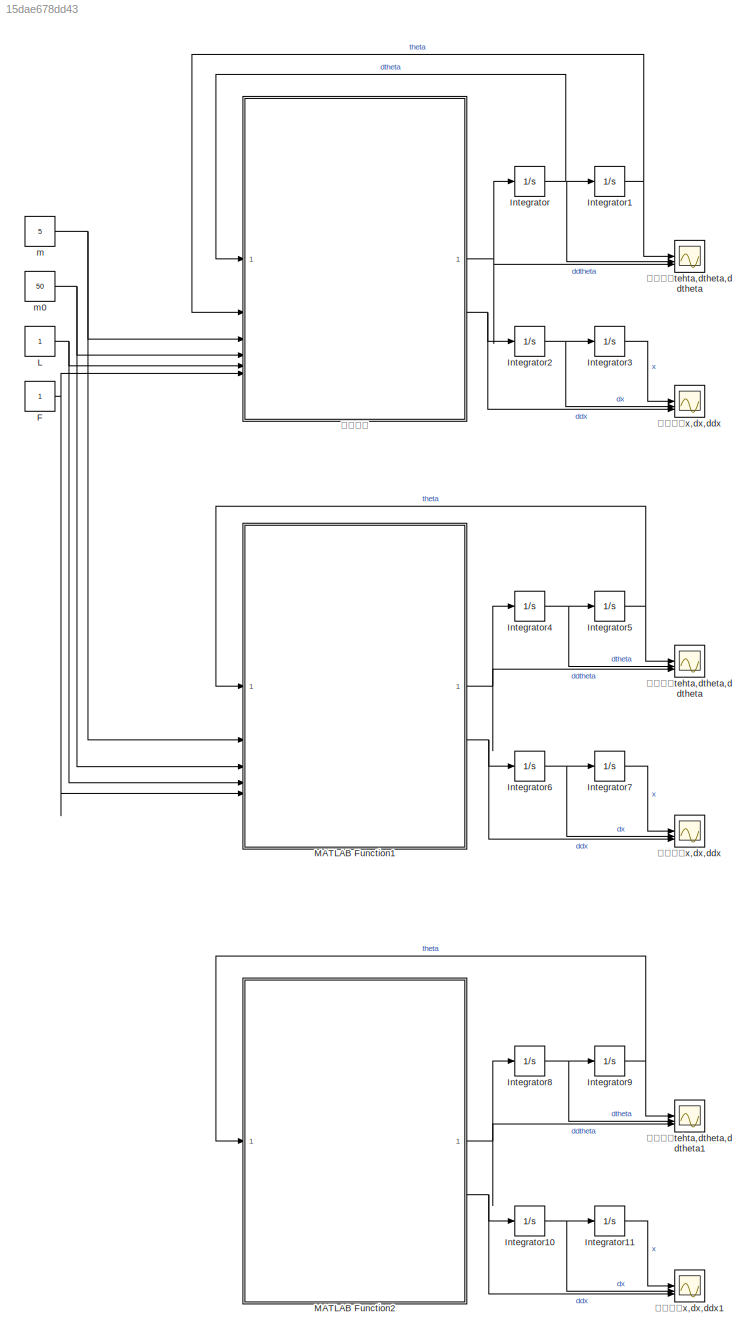
MODEL slx_15dae678dd43
KIND model
CONFIG AbsTol = auto
CONFIG EnableMultiTasking = off
CONFIG FixedStep = auto
CONFIG MaxStep = auto
CONFIG MinStep = auto
CONFIG RelTol = 1e-3
CONFIG SampleTimeConstraint = Unconstrained
CONFIG SolverName = VariableStepAuto
CONFIG StartTime = 0.0
CONFIG StopTime = 10.0
BLOCK [Constant] F
BLOCK [Integrator] Integrator
BLOCK [Integrator] Integrator1
BLOCK [Integrator] Integrator10
BLOCK [Integrator] Integrator11
BLOCK [Integrator] Integrator2
BLOCK [Integrator] Integrator3
BLOCK [Integrator] Integrator4
BLOCK [Integrator] Integrator5
BLOCK [Integrator] Integrator6
BLOCK [Integrator] Integrator7
BLOCK [Integrator] Integrator8
BLOCK [Integrator] Integrator9
BLOCK [Constant] L
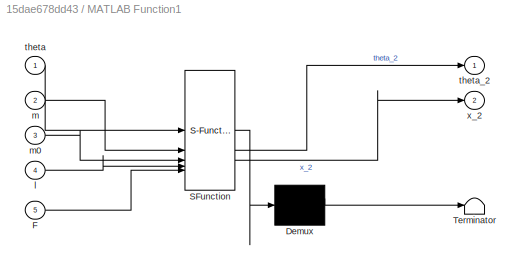
BLOCK [SubSystem] MATLAB Function1
  ErrorFcn = Stateflow.Translate.translate
  PermitHierarchicalResolution = ExplicitOnly
  SFBlockType = MATLAB Function
  TreatAsAtomicUnit = on
BLOCK [Demux] MATLAB Function1/ Demux 
  Outputs = 1
BLOCK [S-Function] MATLAB Function1/ SFunction 
  EnableBusSupport = on
  FunctionName = sf_sfun
  PortCounts = [5 3]
  SFcnIsStateOwnerBlock = off
  SFunctionDeploymentMode = off
  Tag = Stateflow S-Function 1
BLOCK [Terminator] MATLAB Function1/ Terminator 
BLOCK [Inport] MATLAB Function1/F
  Port = 5
BLOCK [Inport] MATLAB Function1/l
  Port = 4
BLOCK [Inport] MATLAB Function1/m
  Port = 2
BLOCK [Inport] MATLAB Function1/m0
  Port = 3
BLOCK [Inport] MATLAB Function1/theta
BLOCK [Outport] MATLAB Function1/theta_2
BLOCK [Outport] MATLAB Function1/x_2
  Port = 2
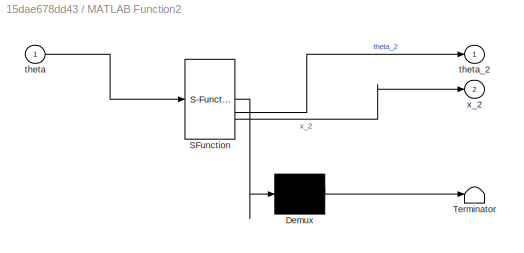
BLOCK [SubSystem] MATLAB Function2
  ErrorFcn = Stateflow.Translate.translate
  PermitHierarchicalResolution = ExplicitOnly
  SFBlockType = MATLAB Function
  TreatAsAtomicUnit = on
BLOCK [Demux] MATLAB Function2/ Demux 
  Outputs = 1
BLOCK [S-Function] MATLAB Function2/ SFunction 
  EnableBusSupport = on
  FunctionName = sf_sfun
  PortCounts = [1 3]
  SFcnIsStateOwnerBlock = off
  SFunctionDeploymentMode = off
  Tag = Stateflow S-Function 3
BLOCK [Terminator] MATLAB Function2/ Terminator 
BLOCK [Inport] MATLAB Function2/theta
BLOCK [Outport] MATLAB Function2/theta_2
BLOCK [Outport] MATLAB Function2/x_2
  Port = 2
BLOCK [Constant] m
  Value = 5
BLOCK [Constant] m0
  Value = 50
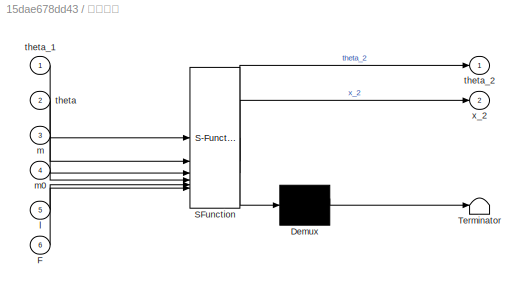
BLOCK [SubSystem] 复杂模型
  ErrorFcn = Stateflow.Translate.translate
  PermitHierarchicalResolution = ExplicitOnly
  SFBlockType = MATLAB Function
  TreatAsAtomicUnit = on
BLOCK [Demux] 复杂模型/ Demux 
  Outputs = 1
BLOCK [S-Function] 复杂模型/ SFunction 
  EnableBusSupport = on
  FunctionName = sf_sfun
  PortCounts = [6 3]
  SFcnIsStateOwnerBlock = off
  SFunctionDeploymentMode = off
  Tag = Stateflow S-Function 2
BLOCK [Terminator] 复杂模型/ Terminator 
BLOCK [Inport] 复杂模型/F
  Port = 6
BLOCK [Inport] 复杂模型/l
  Port = 5
BLOCK [Inport] 复杂模型/m
  Port = 3
BLOCK [Inport] 复杂模型/m0
  Port = 4
BLOCK [Inport] 复杂模型/theta
  Port = 2
BLOCK [Inport] 复杂模型/theta_1
BLOCK [Outport] 复杂模型/theta_2
BLOCK [Outport] 复杂模型/x_2
  Port = 2
BLOCK [Scope] 复杂模型tehta,dtheta,ddtheta
  Floating = off
  NumInputPorts = 3
  ScopeSpecificationString = Simulink.scopes.TimeScopeBlockCfg('CurrentConfiguration', extmgr.ConfigurationSet(extmgr.Configuration('Core','General UI',true),extmgr.Configuration('Core','Source UI',true),extmgr.Configuration('Sources','WiredSimulink',true),extmgr.Configuration('Visuals','Time Domain',true,'SerializedDisplays',{struct('MinYLimReal','-0.02491','MaxYLimReal','0.02499','YLabelReal','','MinYLimMag','0.00000','MaxY...<+1476ch>
BLOCK [Scope] 复杂模型x,dx,ddx
  Floating = off
  NumInputPorts = 3
  ScopeSpecificationString = Simulink.scopes.TimeScopeBlockCfg('CurrentConfiguration', extmgr.ConfigurationSet(extmgr.Configuration('Core','General UI',true),extmgr.Configuration('Core','Source UI',true),extmgr.Configuration('Sources','WiredSimulink',true,'DataLoggingVariableName','ScopeData1'),extmgr.Configuration('Visuals','Time Domain',true,'SerializedDisplays',{struct('MinYLimReal','-0.11365','MaxYLimReal','1.02289','YLab...<+1428ch>
BLOCK [Scope] 简单模型tehta,dtheta,ddtheta
  Floating = off
  NumInputPorts = 3
  ScopeSpecificationString = Simulink.scopes.TimeScopeBlockCfg('CurrentConfiguration', extmgr.ConfigurationSet(extmgr.Configuration('Core','General UI',true),extmgr.Configuration('Core','Source UI',true),extmgr.Configuration('Sources','WiredSimulink',true,'DataLoggingVariableName','ScopeData2'),extmgr.Configuration('Visuals','Time Domain',true,'SerializedDisplays',{struct('MinYLimReal','-0.02491','MaxYLimReal','0.02499','YLab...<+1417ch>
BLOCK [Scope] 简单模型tehta,dtheta,ddtheta1
  Floating = off
  NumInputPorts = 3
  ScopeSpecificationString = Simulink.scopes.TimeScopeBlockCfg('CurrentConfiguration', extmgr.ConfigurationSet(extmgr.Configuration('Core','General UI',true),extmgr.Configuration('Core','Source UI',true),extmgr.Configuration('Sources','WiredSimulink',true,'DataLoggingVariableName','ScopeData1'),extmgr.Configuration('Visuals','Time Domain',true,'SerializedDisplays',{struct('MinYLimReal','-0.02491','MaxYLimReal','0.02499','YLab...<+1443ch>
BLOCK [Scope] 简单模型x,dx,ddx
  Floating = off
  NumInputPorts = 3
  ScopeSpecificationString = Simulink.scopes.TimeScopeBlockCfg('CurrentConfiguration', extmgr.ConfigurationSet(extmgr.Configuration('Core','General UI',true),extmgr.Configuration('Core','Source UI',true),extmgr.Configuration('Sources','WiredSimulink',true,'DataLoggingVariableName','ScopeData3'),extmgr.Configuration('Visuals','Time Domain',true,'SerializedDisplays',{struct('MinYLimReal','-0.11365','MaxYLimReal','1.02289','YLab...<+1429ch>
BLOCK [Scope] 简单模型x,dx,ddx1
  Floating = off
  NumInputPorts = 3
  ScopeSpecificationString = Simulink.scopes.TimeScopeBlockCfg('CurrentConfiguration', extmgr.ConfigurationSet(extmgr.Configuration('Core','General UI',true),extmgr.Configuration('Core','Source UI',true),extmgr.Configuration('Sources','WiredSimulink',true,'DataLoggingVariableName','ScopeData2'),extmgr.Configuration('Visuals','Time Domain',true,'SerializedDisplays',{struct('MinYLimReal','-0.11365','MaxYLimReal','1.02289','YLab...<+1428ch>
NET F:1 -> MATLAB Function1:5, 复杂模型:6
NET Integrator10:1 -> Integrator11:1, 简单模型x,dx,ddx1:2
LINE Integrator11:1 -> 简单模型x,dx,ddx1:1
NET Integrator1:1 -> 复杂模型:2, 复杂模型tehta,dtheta,ddtheta:1
NET Integrator2:1 -> Integrator3:1, 复杂模型x,dx,ddx:2
LINE Integrator3:1 -> 复杂模型x,dx,ddx:1
NET Integrator4:1 -> Integrator5:1, 简单模型tehta,dtheta,ddtheta:2
NET Integrator5:1 -> MATLAB Function1:1, 简单模型tehta,dtheta,ddtheta:1
NET Integrator6:1 -> Integrator7:1, 简单模型x,dx,ddx:2
LINE Integrator7:1 -> 简单模型x,dx,ddx:1
NET Integrator8:1 -> Integrator9:1, 简单模型tehta,dtheta,ddtheta1:2
NET Integrator9:1 -> MATLAB Function2:1, 简单模型tehta,dtheta,ddtheta1:1
NET Integrator:1 -> Integrator1:1, 复杂模型:1, 复杂模型tehta,dtheta,ddtheta:2
NET L:1 -> MATLAB Function1:4, 复杂模型:5
NET MATLAB Function1:1 -> Integrator4:1, 简单模型tehta,dtheta,ddtheta:3
NET MATLAB Function1:2 -> Integrator6:1, 简单模型x,dx,ddx:3
NET MATLAB Function2:1 -> Integrator8:1, 简单模型tehta,dtheta,ddtheta1:3
NET MATLAB Function2:2 -> Integrator10:1, 简单模型x,dx,ddx1:3
NET m0:1 -> MATLAB Function1:3, 复杂模型:4
NET m:1 -> MATLAB Function1:2, 复杂模型:3
NET 复杂模型:1 -> Integrator:1, 复杂模型tehta,dtheta,ddtheta:3
NET 复杂模型:2 -> Integrator2:1, 复杂模型x,dx,ddx:3
note: NET lines group one-source signal fan-out (src -> all destinations, sorted); 1:1 wires keep LINE
CHART MATLAB Function1 states=1 transitions=1
  STATE_LABEL 'eML_blk_kernel()'
  STATE_LABEL 'SCRIPT:\nfunction [theta_2,x_2] = fcn(theta,m,m0,l,F)\n\n% x_2m = m0 + m*(sin(theta))^2;\n% x_2z = F - 9.8*m*sin(theta)*cos(theta) - m*l*(theta_1^2)*sin(theta);\n% x_2=x_2z / x_2m;\n% \n% theta_2 = x_2*cos(theta)/l - 9.8*sin(theta)/l;\n\nx_2 = -9.8*m*theta/m0 + F/m0;\ntheta_2 = -9.8*(m+m0)*theta/(m0*l) + F/(m0*l);'
CHART 复杂模型 states=1 transitions=1
  STATE_LABEL 'eML_blk_kernel()'
  STATE_LABEL 'SCRIPT:\nfunction [theta_2,x_2] = fcn(theta_1,theta,m,m0,l,F)\n\nx_2m = m0 + m*(sin(theta))^2;\nx_2z = F - 9.8*m*sin(theta)*cos(theta) - m*l*(theta_1^2)*sin(theta);\nx_2=x_2z / x_2m;\n\ntheta_2 = x_2*cos(theta)/l - 9.8*sin(theta)/l;'
CHART MATLAB Function2 states=1 transitions=1
  STATE_LABEL 'eML_blk_kernel()'
  STATE_LABEL 'SCRIPT:\nfunction [theta_2,x_2] = fcn(theta)\n\nx_2 = -49*theta/50 + 1/50;\ntheta_2 = -539*theta/50 + 1/50;'
CHART  states=0 transitions=0
CHART  states=0 transitions=0
CHART  states=0 transitions=0
